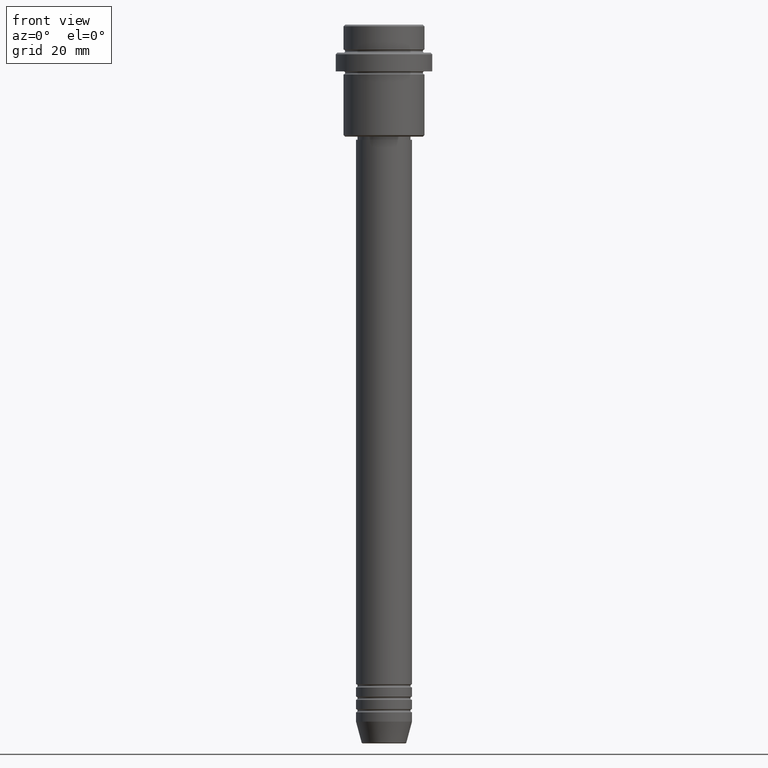
[diagram: clean part render]
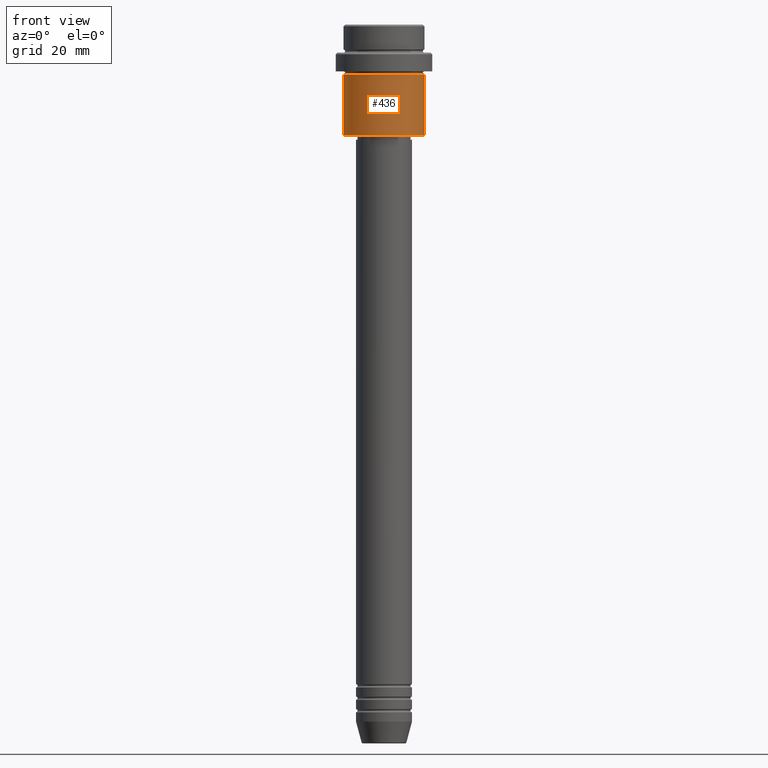
[diagram: same view with one face highlighted and labeled with its STEP entity id]
A machine part, front view. The second image highlights one B-rep face of the part: STEP entity #436.
In plain terms, the highlighted cylindrical surface (partial cylindrical patch) has radius 13 mm, axis along (-0, -0, 1).
Its self-contained STEP definition (entity closure, byte-faithful):
#118 = DIRECTION ( 'NONE',  ( -1.000000000000000000, 0.000000000000000000, 0.000000000000000000 ) ) ;
#214 = EDGE_LOOP ( 'NONE', ( #431, #711, #1088, #710 ) ) ;
#217 = CARTESIAN_POINT ( 'NONE',  ( -13.00000000000000000, 1.592040838891559095E-15, -16.00000000000000000 ) ) ;
#308 = FACE_OUTER_BOUND ( 'NONE', #214, .T. ) ;
#347 = AXIS2_PLACEMENT_3D ( 'NONE', #1014, #454, #118 ) ;
#363 = LINE ( 'NONE', #798, #783 ) ;
#377 = VECTOR ( 'NONE', #792, 1000.000000000000000 ) ;
#424 = CYLINDRICAL_SURFACE ( 'NONE', #507, 13.00000000000000000 ) ;
#431 = ORIENTED_EDGE ( 'NONE', *, *, #608, .F. ) ;
#436 = ADVANCED_FACE ( 'NONE', ( #308 ), #424, .T. ) ;
#454 = DIRECTION ( 'NONE',  ( -0.000000000000000000, -0.000000000000000000, 1.000000000000000000 ) ) ;
#461 = CARTESIAN_POINT ( 'NONE',  ( 13.00000000000000000, 0.000000000000000000, 0.000000000000000000 ) ) ;
#507 = AXIS2_PLACEMENT_3D ( 'NONE', #1082, #1295, #757 ) ;
#533 = AXIS2_PLACEMENT_3D ( 'NONE', #655, #1406, #882 ) ;
#544 = EDGE_CURVE ( 'NONE', #837, #1323, #555, .T. ) ;
#555 = CIRCLE ( 'NONE', #347, 13.00000000000000000 ) ;
#608 = EDGE_CURVE ( 'NONE', #837, #1153, #363, .T. ) ;
#655 = CARTESIAN_POINT ( 'NONE',  ( 0.000000000000000000, 0.000000000000000000, -16.00000000000000000 ) ) ;
#673 = CARTESIAN_POINT ( 'NONE',  ( 13.00000000000000000, 0.000000000000000000, -35.50000000000003553 ) ) ;
#703 = CARTESIAN_POINT ( 'NONE',  ( 13.00000000000000000, 0.000000000000000000, -16.00000000000000000 ) ) ;
#710 = ORIENTED_EDGE ( 'NONE', *, *, #871, .F. ) ;
#711 = ORIENTED_EDGE ( 'NONE', *, *, #544, .T. ) ;
#757 = DIRECTION ( 'NONE',  ( 1.000000000000000000, 0.000000000000000000, 0.000000000000000000 ) ) ;
#775 = CARTESIAN_POINT ( 'NONE',  ( -13.00000000000000000, 1.592040838891559095E-15, -35.50000000000003553 ) ) ;
#783 = VECTOR ( 'NONE', #1234, 1000.000000000000000 ) ;
#792 = DIRECTION ( 'NONE',  ( -0.000000000000000000, -0.000000000000000000, 1.000000000000000000 ) ) ;
#798 = CARTESIAN_POINT ( 'NONE',  ( -13.00000000000000000, 1.592040838891559095E-15, 0.000000000000000000 ) ) ;
#837 = VERTEX_POINT ( 'NONE', #775 ) ;
#871 = EDGE_CURVE ( 'NONE', #1153, #1028, #1309, .T. ) ;
#882 = DIRECTION ( 'NONE',  ( 1.000000000000000000, 0.000000000000000000, 0.000000000000000000 ) ) ;
#995 = LINE ( 'NONE', #461, #377 ) ;
#1014 = CARTESIAN_POINT ( 'NONE',  ( 0.000000000000000000, 0.000000000000000000, -35.50000000000003553 ) ) ;
#1028 = VERTEX_POINT ( 'NONE', #703 ) ;
#1082 = CARTESIAN_POINT ( 'NONE',  ( 0.000000000000000000, 0.000000000000000000, 0.000000000000000000 ) ) ;
#1088 = ORIENTED_EDGE ( 'NONE', *, *, #1312, .T. ) ;
#1153 = VERTEX_POINT ( 'NONE', #217 ) ;
#1234 = DIRECTION ( 'NONE',  ( -0.000000000000000000, -0.000000000000000000, 1.000000000000000000 ) ) ;
#1295 = DIRECTION ( 'NONE',  ( -0.000000000000000000, -0.000000000000000000, 1.000000000000000000 ) ) ;
#1309 = CIRCLE ( 'NONE', #533, 13.00000000000000000 ) ;
#1312 = EDGE_CURVE ( 'NONE', #1323, #1028, #995, .T. ) ;
#1323 = VERTEX_POINT ( 'NONE', #673 ) ;
#1406 = DIRECTION ( 'NONE',  ( -0.000000000000000000, -0.000000000000000000, 1.000000000000000000 ) ) ;